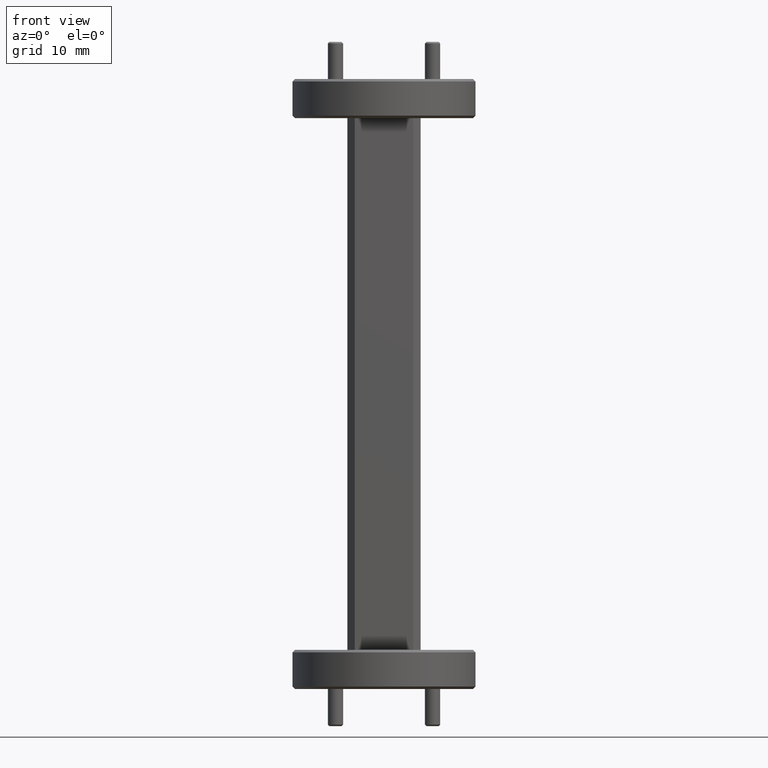
[diagram: clean part render]
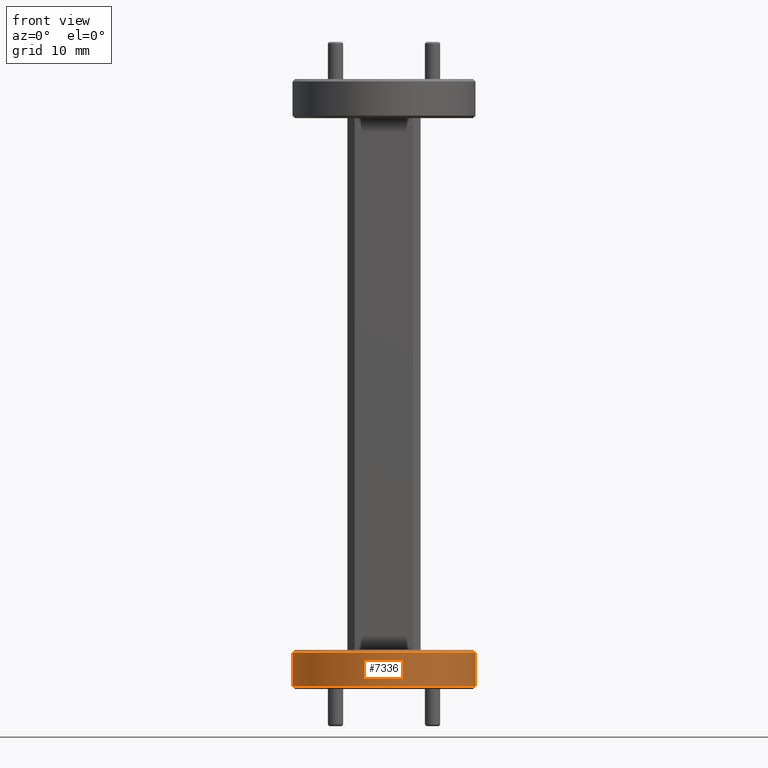
[diagram: same view with one face highlighted and labeled with its STEP entity id]
A machine part, front view. The second image highlights one B-rep face of the part: STEP entity #7336.
In plain terms, the highlighted cylindrical surface (partial cylindrical patch) has radius 9.525 mm, axis along (0, 0, -1).
Its self-contained STEP definition (entity closure, byte-faithful):
#63 = CARTESIAN_POINT ( 'NONE',  ( 0.3750000000000000555, 4.592425496802575451E-17, -1.240000000000000435 ) ) ;
#74 = EDGE_CURVE ( 'NONE', #1619, #3117, #1183, .T. ) ;
#85 = AXIS2_PLACEMENT_3D ( 'NONE', #2270, #7489, #6986 ) ;
#88 = EDGE_CURVE ( 'NONE', #6727, #1619, #4480, .T. ) ;
#371 = CARTESIAN_POINT ( 'NONE',  ( 0.000000000000000000, 0.000000000000000000, -1.100000000000000089 ) ) ;
#547 = CARTESIAN_POINT ( 'NONE',  ( 0.3750000000000000555, 4.592425496802575451E-17, -1.090000000000000080 ) ) ;
#556 = EDGE_CURVE ( 'NONE', #4754, #3117, #3514, .T. ) ;
#998 = DIRECTION ( 'NONE',  ( 0.000000000000000000, 0.000000000000000000, -1.000000000000000000 ) ) ;
#1183 = CIRCLE ( 'NONE', #85, 0.3750000000000000555 ) ;
#1468 = CARTESIAN_POINT ( 'NONE',  ( 0.3750000000000000555, 4.592425496802575451E-17, -1.100000000000000089 ) ) ;
#1619 = VERTEX_POINT ( 'NONE', #7460 ) ;
#2172 = DIRECTION ( 'NONE',  ( -1.000000000000000000, 0.000000000000000000, 0.000000000000000000 ) ) ;
#2270 = CARTESIAN_POINT ( 'NONE',  ( 0.000000000000000000, 0.000000000000000000, -1.240000000000000435 ) ) ;
#2651 = ORIENTED_EDGE ( 'NONE', *, *, #556, .F. ) ;
#2769 = VECTOR ( 'NONE', #2853, 39.37007874015748143 ) ;
#2853 = DIRECTION ( 'NONE',  ( 0.000000000000000000, 0.000000000000000000, -1.000000000000000000 ) ) ;
#3117 = VERTEX_POINT ( 'NONE', #63 ) ;
#3164 = ORIENTED_EDGE ( 'NONE', *, *, #5198, .T. ) ;
#3368 = FACE_OUTER_BOUND ( 'NONE', #4993, .T. ) ;
#3514 = LINE ( 'NONE', #547, #2769 ) ;
#4014 = CARTESIAN_POINT ( 'NONE',  ( -0.3750000000000000555, 0.000000000000000000, -1.100000000000000089 ) ) ;
#4480 = LINE ( 'NONE', #5681, #4771 ) ;
#4561 = CYLINDRICAL_SURFACE ( 'NONE', #6232, 0.3750000000000000555 ) ;
#4726 = AXIS2_PLACEMENT_3D ( 'NONE', #371, #5085, #7367 ) ;
#4754 = VERTEX_POINT ( 'NONE', #1468 ) ;
#4771 = VECTOR ( 'NONE', #998, 39.37007874015748143 ) ;
#4993 = EDGE_LOOP ( 'NONE', ( #2651, #3164, #6590, #7169 ) ) ;
#5085 = DIRECTION ( 'NONE',  ( 0.000000000000000000, 0.000000000000000000, -1.000000000000000000 ) ) ;
#5183 = DIRECTION ( 'NONE',  ( 0.000000000000000000, 0.000000000000000000, -1.000000000000000000 ) ) ;
#5198 = EDGE_CURVE ( 'NONE', #4754, #6727, #5342, .T. ) ;
#5226 = CARTESIAN_POINT ( 'NONE',  ( 0.000000000000000000, 0.000000000000000000, -1.090000000000000080 ) ) ;
#5342 = CIRCLE ( 'NONE', #4726, 0.3750000000000000555 ) ;
#5681 = CARTESIAN_POINT ( 'NONE',  ( -0.3750000000000000555, 0.000000000000000000, -1.090000000000000080 ) ) ;
#6232 = AXIS2_PLACEMENT_3D ( 'NONE', #5226, #5183, #2172 ) ;
#6590 = ORIENTED_EDGE ( 'NONE', *, *, #88, .T. ) ;
#6727 = VERTEX_POINT ( 'NONE', #4014 ) ;
#6986 = DIRECTION ( 'NONE',  ( 1.000000000000000000, 0.000000000000000000, 0.000000000000000000 ) ) ;
#7169 = ORIENTED_EDGE ( 'NONE', *, *, #74, .T. ) ;
#7336 = ADVANCED_FACE ( 'NONE', ( #3368 ), #4561, .T. ) ;
#7367 = DIRECTION ( 'NONE',  ( -1.000000000000000000, 0.000000000000000000, 0.000000000000000000 ) ) ;
#7460 = CARTESIAN_POINT ( 'NONE',  ( -0.3750000000000000555, 0.000000000000000000, -1.240000000000000435 ) ) ;
#7489 = DIRECTION ( 'NONE',  ( -0.000000000000000000, -0.000000000000000000, 1.000000000000000000 ) ) ;